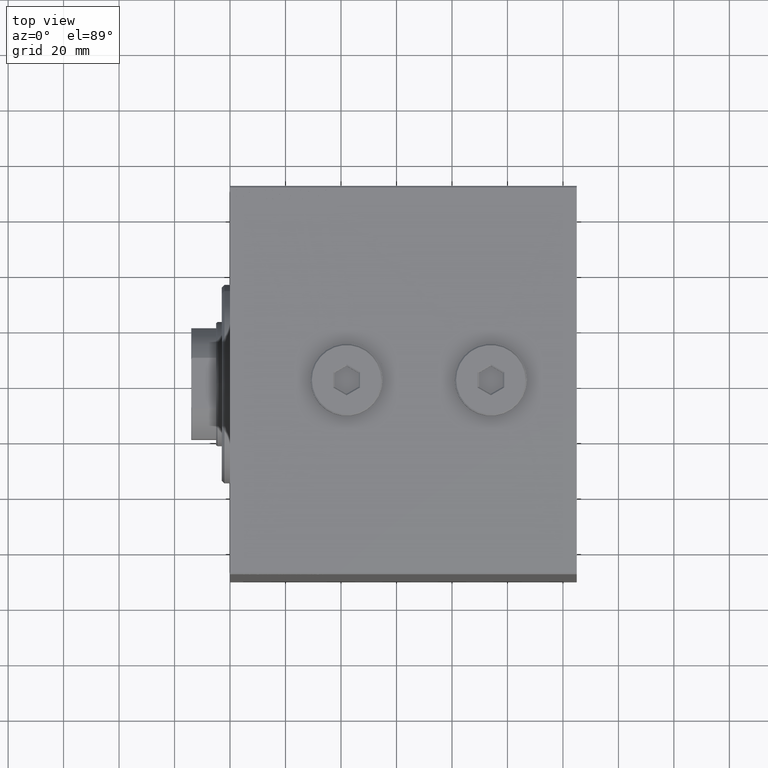
[diagram: clean part render]
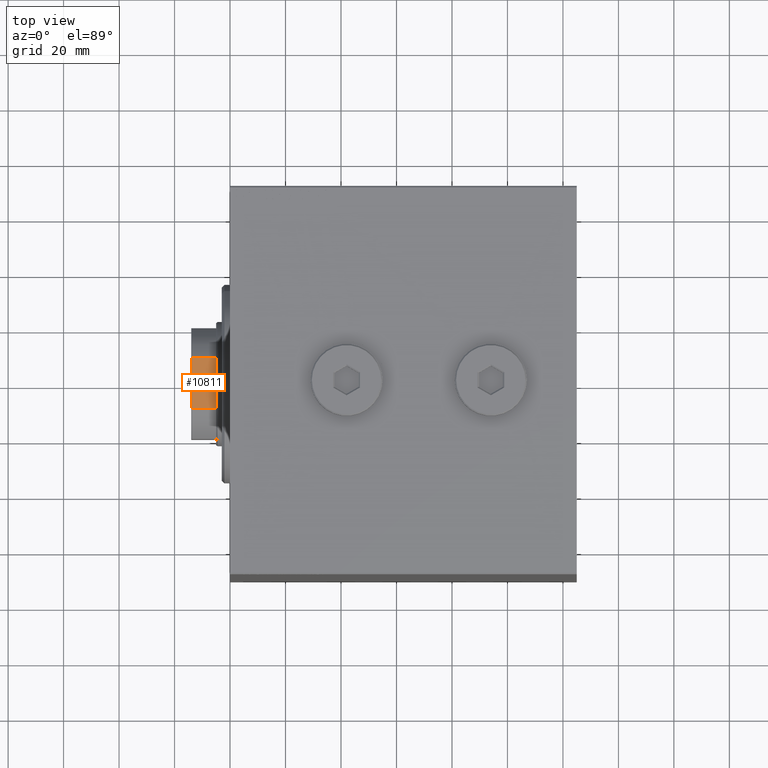
[diagram: same view with one face highlighted and labeled with its STEP entity id]
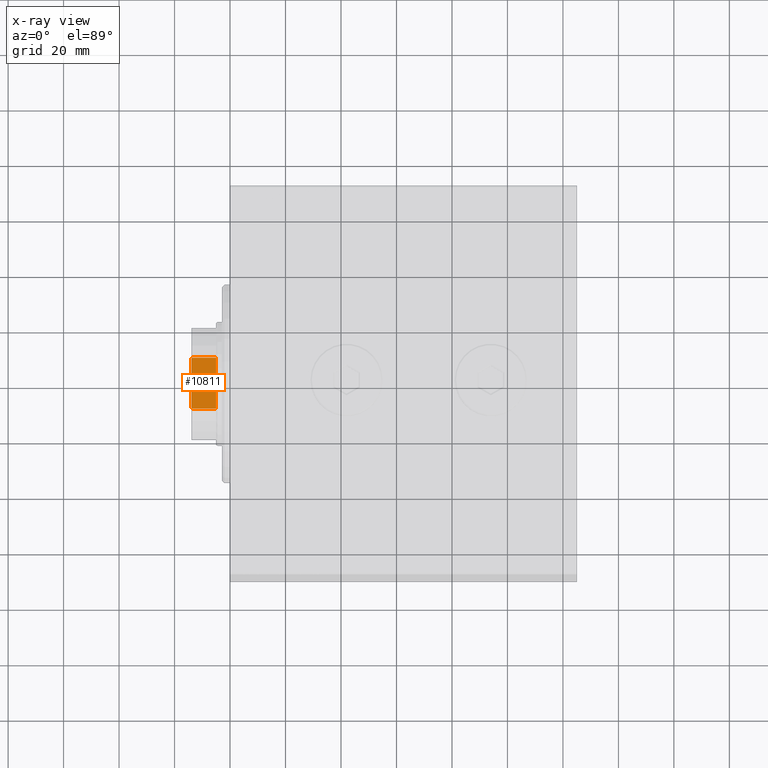
[diagram: x-ray of the same camera — body ghosted, the highlighted face saturated]
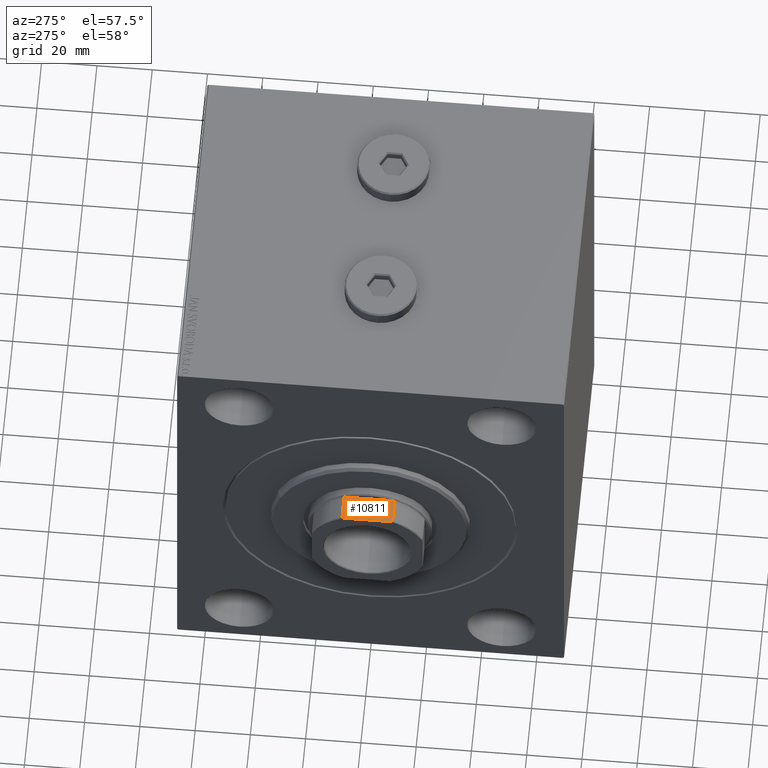
[diagram: same view with one face highlighted and labeled with its STEP entity id]
A machine part, top view. The second image highlights one B-rep face of the part: STEP entity #10811.
The next image is the same camera in x-ray: the body ghosted, the highlighted face saturated — about 0% of this face is hidden behind the body in this view.
A second angle (auxiliary view) of the same face is appended — the face is thin or edge-on in the first view.
In plain terms, the highlighted planar face has unit normal (-0, -0, -1).
Its self-contained STEP definition (entity closure, byte-faithful):
#2382 = VECTOR ( 'NONE', #22208, 1000.000000000000000 ) ;
#4318 = LINE ( 'NONE', #14142, #39245 ) ;
#4620 = CARTESIAN_POINT ( 'NONE',  ( 19.99999999999999289, 8.917857062074594054, 64.80302227056787956 ) ) ;
#5671 = DIRECTION ( 'NONE',  ( -1.000000000000000000, -2.602085213965210149E-16, 0.000000000000000000 ) ) ;
#5701 = CARTESIAN_POINT ( 'NONE',  ( 19.99999999999999289, -9.165151389911693869, 55.99999999999998579 ) ) ;
#5787 = ORIENTED_EDGE ( 'NONE', *, *, #6562, .T. ) ;
#6562 = EDGE_CURVE ( 'NONE', #20977, #20687, #11389, .T. ) ;
#7180 = CARTESIAN_POINT ( 'NONE',  ( 19.99999999999999289, 19.99999999999999289, 55.99999999999999289 ) ) ;
#9391 = VERTEX_POINT ( 'NONE', #36086 ) ;
#9920 = ORIENTED_EDGE ( 'NONE', *, *, #16398, .T. ) ;
#10231 = LINE ( 'NONE', #45146, #42407 ) ;
#10678 = DIRECTION ( 'NONE',  ( -2.602085213965210149E-16, 1.000000000000000000, -0.000000000000000000 ) ) ;
#10811 = ADVANCED_FACE ( 'NONE', ( #43779 ), #29868, .F. ) ;
#11389 = B_SPLINE_CURVE_WITH_KNOTS ( 'NONE', 3,
 ( #24921, #29023, #18765, #32682 ),
 .UNSPECIFIED., .F., .F.,
 ( 4, 4 ),
 ( 0.000000000000000000, 0.0008036274864433977242 ),
 .UNSPECIFIED. ) ;
#14142 = CARTESIAN_POINT ( 'NONE',  ( 19.99999999999999289, -9.165151389911693869, -0.001000000000001000089 ) ) ;
#14636 = EDGE_CURVE ( 'NONE', #33367, #20687, #4318, .T. ) ;
#14904 = CARTESIAN_POINT ( 'NONE',  ( 19.99999999999999289, 9.165151389911692092, -0.001000000000001000089 ) ) ;
#16272 = CARTESIAN_POINT ( 'NONE',  ( 20.00000000000000000, -8.419619943916732296, 64.99999999999998579 ) ) ;
#16398 = EDGE_CURVE ( 'NONE', #33026, #28765, #35798, .T. ) ;
#17306 = AXIS2_PLACEMENT_3D ( 'NONE', #37412, #5671, #40814 ) ;
#18552 = CARTESIAN_POINT ( 'NONE',  ( 19.99999999999999645, 8.669375665356255922, 64.90309455053734666 ) ) ;
#18753 = ORIENTED_EDGE ( 'NONE', *, *, #14636, .F. ) ;
#18765 = CARTESIAN_POINT ( 'NONE',  ( 20.00000000000000000, -8.917857062074590502, 64.80302227056787956 ) ) ;
#18881 = EDGE_CURVE ( 'NONE', #20977, #28765, #10231, .T. ) ;
#19132 = CARTESIAN_POINT ( 'NONE',  ( 19.99999999999999289, -9.165151389911693869, 64.69999999999998863 ) ) ;
#20247 = EDGE_CURVE ( 'NONE', #9391, #33026, #42967, .T. ) ;
#20687 = VERTEX_POINT ( 'NONE', #19132 ) ;
#20977 = VERTEX_POINT ( 'NONE', #16272 ) ;
#21977 = CARTESIAN_POINT ( 'NONE',  ( 19.99999999999999289, 9.165151389911692092, 64.69999999999998863 ) ) ;
#22077 = EDGE_CURVE ( 'NONE', #33367, #9391, #41857, .T. ) ;
#22208 = DIRECTION ( 'NONE',  ( -0.000000000000000000, -0.000000000000000000, 1.000000000000000000 ) ) ;
#24921 = CARTESIAN_POINT ( 'NONE',  ( 20.00000000000000000, -8.419619943916732296, 64.99999999999998579 ) ) ;
#25085 = DIRECTION ( 'NONE',  ( -0.000000000000000000, -0.000000000000000000, 1.000000000000000000 ) ) ;
#28222 = CARTESIAN_POINT ( 'NONE',  ( 19.99999999999999289, 8.419619943916742955, 64.99999999999998579 ) ) ;
#28748 = ORIENTED_EDGE ( 'NONE', *, *, #22077, .T. ) ;
#28765 = VERTEX_POINT ( 'NONE', #28222 ) ;
#28957 = ORIENTED_EDGE ( 'NONE', *, *, #20247, .T. ) ;
#29023 = CARTESIAN_POINT ( 'NONE',  ( 19.99999999999999645, -8.669375665356248817, 64.90309455053733245 ) ) ;
#29868 = PLANE ( 'NONE',  #17306 ) ;
#31564 = VECTOR ( 'NONE', #38425, 1000.000000000000000 ) ;
#32463 = CARTESIAN_POINT ( 'NONE',  ( 19.99999999999999289, 8.419619943916742955, 64.99999999999998579 ) ) ;
#32682 = CARTESIAN_POINT ( 'NONE',  ( 19.99999999999999289, -9.165151389911693869, 64.69999999999998863 ) ) ;
#33026 = VERTEX_POINT ( 'NONE', #41732 ) ;
#33142 = ORIENTED_EDGE ( 'NONE', *, *, #18881, .F. ) ;
#33367 = VERTEX_POINT ( 'NONE', #5701 ) ;
#35798 = B_SPLINE_CURVE_WITH_KNOTS ( 'NONE', 3,
 ( #21977, #4620, #18552, #32463 ),
 .UNSPECIFIED., .F., .F.,
 ( 4, 4 ),
 ( 0.000000000000000000, 0.0008036274864433864485 ),
 .UNSPECIFIED. ) ;
#36086 = CARTESIAN_POINT ( 'NONE',  ( 19.99999999999999289, 9.165151389911692092, 55.99999999999998579 ) ) ;
#37412 = CARTESIAN_POINT ( 'NONE',  ( 19.99999999999999289, 19.99999999999999289, 64.99999999999998579 ) ) ;
#38425 = DIRECTION ( 'NONE',  ( -2.602085213965210149E-16, 1.000000000000000000, -0.000000000000000000 ) ) ;
#39245 = VECTOR ( 'NONE', #25085, 1000.000000000000000 ) ;
#39496 = EDGE_LOOP ( 'NONE', ( #28957, #9920, #33142, #5787, #18753, #28748 ) ) ;
#40814 = DIRECTION ( 'NONE',  ( 2.602085213965210149E-16, -1.000000000000000000, 0.000000000000000000 ) ) ;
#41732 = CARTESIAN_POINT ( 'NONE',  ( 19.99999999999999289, 9.165151389911692092, 64.69999999999998863 ) ) ;
#41857 = LINE ( 'NONE', #7180, #31564 ) ;
#42407 = VECTOR ( 'NONE', #10678, 1000.000000000000000 ) ;
#42967 = LINE ( 'NONE', #14904, #2382 ) ;
#43779 = FACE_OUTER_BOUND ( 'NONE', #39496, .T. ) ;
#45146 = CARTESIAN_POINT ( 'NONE',  ( 19.99999999999999289, 19.99999999999999289, 64.99999999999998579 ) ) ;